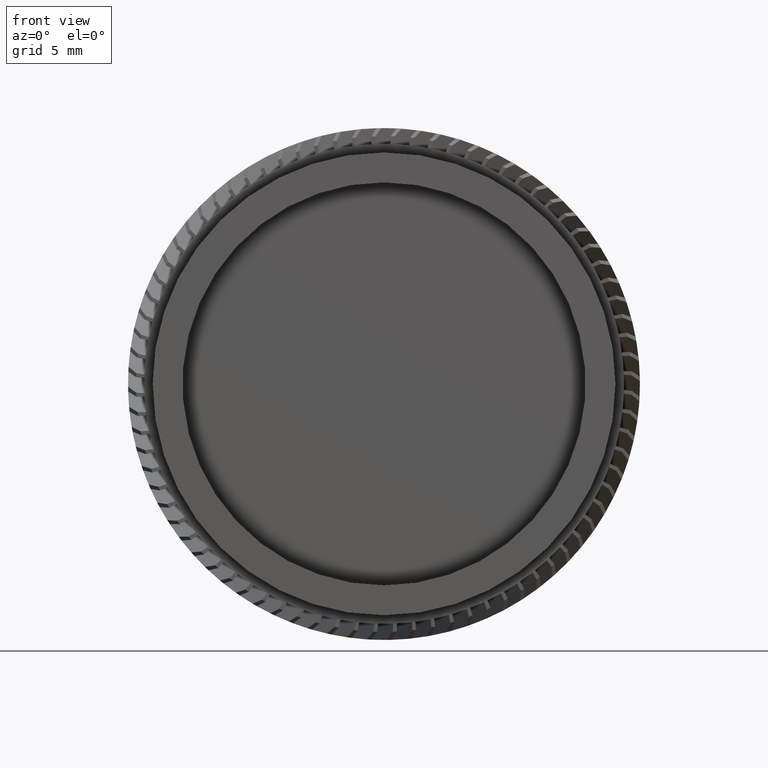
[diagram: clean part render]
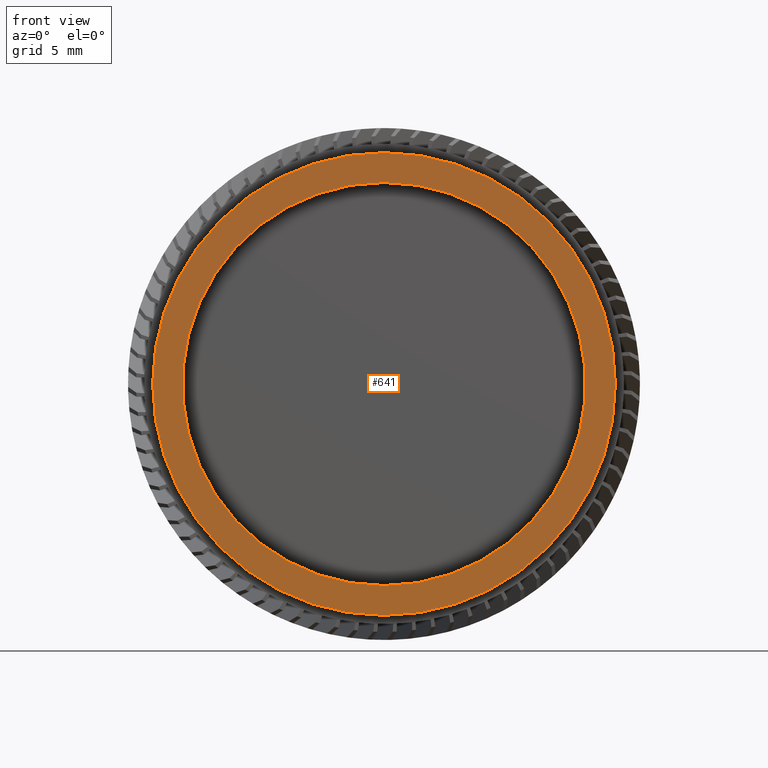
[diagram: same view with one face highlighted and labeled with its STEP entity id]
A machine part, front view. The second image highlights one B-rep face of the part: STEP entity #641.
In plain terms, the highlighted planar face has unit normal (-0, 1, 0).
Its self-contained STEP definition (entity closure, byte-faithful):
#106 = DIRECTION ( 'NONE',  ( 0.0000000000000000000, 0.0000000000000000000, 1.000000000000000000 ) ) ;
#641 = ADVANCED_FACE ( 'NONE', ( #4603, #6800 ), #3836, .F. ) ;
#917 = ORIENTED_EDGE ( 'NONE', *, *, #2044, .T. ) ;
#1429 = DIRECTION ( 'NONE',  ( -0.0000000000000000000, 1.000000000000000000, -0.0000000000000000000 ) ) ;
#1930 = CARTESIAN_POINT ( 'NONE',  ( 0.0000000000000000000, 15.37125740523061900, 0.0000000000000000000 ) ) ;
#2044 = EDGE_CURVE ( 'NONE', #12291, #3282, #14964, .T. ) ;
#2523 = ORIENTED_EDGE ( 'NONE', *, *, #16471, .T. ) ;
#2539 = CARTESIAN_POINT ( 'NONE',  ( 0.0000000000000000000, 15.37125740523061900, 14.35000000000000500 ) ) ;
#2550 = CIRCLE ( 'NONE', #14551, 14.35000000000000500 ) ;
#3282 = VERTEX_POINT ( 'NONE', #15849 ) ;
#3558 = VERTEX_POINT ( 'NONE', #10694 ) ;
#3836 = PLANE ( 'NONE',  #13934 ) ;
#4603 = FACE_OUTER_BOUND ( 'NONE', #9583, .T. ) ;
#5219 = ORIENTED_EDGE ( 'NONE', *, *, #6168, .F. ) ;
#6168 = EDGE_CURVE ( 'NONE', #9115, #3558, #11112, .T. ) ;
#6511 = DIRECTION ( 'NONE',  ( -0.0000000000000000000, 1.000000000000000000, -0.0000000000000000000 ) ) ;
#6800 = FACE_BOUND ( 'NONE', #13030, .T. ) ;
#7559 = CARTESIAN_POINT ( 'NONE',  ( 0.0000000000000000000, 15.37125740523061900, 0.0000000000000000000 ) ) ;
#7622 = DIRECTION ( 'NONE',  ( -0.0000000000000000000, 1.000000000000000000, -0.0000000000000000000 ) ) ;
#9115 = VERTEX_POINT ( 'NONE', #2539 ) ;
#9266 = EDGE_CURVE ( 'NONE', #3558, #9115, #2550, .T. ) ;
#9583 = EDGE_LOOP ( 'NONE', ( #5219, #12967 ) ) ;
#10694 = CARTESIAN_POINT ( 'NONE',  ( 1.757368156776452400E-015, 15.37125740523061900, -14.35000000000000500 ) ) ;
#11112 = CIRCLE ( 'NONE', #15885, 14.35000000000000500 ) ;
#11477 = AXIS2_PLACEMENT_3D ( 'NONE', #17252, #6511, #18695 ) ;
#11619 = CARTESIAN_POINT ( 'NONE',  ( 0.0000000000000000000, 15.37125740523061900, 12.50000000000000500 ) ) ;
#11682 = DIRECTION ( 'NONE',  ( 0.0000000000000000000, 0.0000000000000000000, 1.000000000000000000 ) ) ;
#12270 = DIRECTION ( 'NONE',  ( 0.0000000000000000000, 0.0000000000000000000, 1.000000000000000000 ) ) ;
#12291 = VERTEX_POINT ( 'NONE', #11619 ) ;
#12967 = ORIENTED_EDGE ( 'NONE', *, *, #9266, .F. ) ;
#13030 = EDGE_LOOP ( 'NONE', ( #917, #2523 ) ) ;
#13934 = AXIS2_PLACEMENT_3D ( 'NONE', #14650, #14909, #11682 ) ;
#13999 = CARTESIAN_POINT ( 'NONE',  ( 0.0000000000000000000, 15.37125740523061900, 0.0000000000000000000 ) ) ;
#14551 = AXIS2_PLACEMENT_3D ( 'NONE', #13999, #7622, #106 ) ;
#14650 = CARTESIAN_POINT ( 'NONE',  ( 12.50000000000000500, 15.37125740523061700, 0.0000000000000000000 ) ) ;
#14909 = DIRECTION ( 'NONE',  ( -0.0000000000000000000, 1.000000000000000000, 0.0000000000000000000 ) ) ;
#14964 = CIRCLE ( 'NONE', #16824, 12.50000000000000500 ) ;
#15849 = CARTESIAN_POINT ( 'NONE',  ( 1.530808498934192100E-015, 15.37125740523061900, -12.50000000000000500 ) ) ;
#15885 = AXIS2_PLACEMENT_3D ( 'NONE', #7559, #1429, #12270 ) ;
#16471 = EDGE_CURVE ( 'NONE', #3282, #12291, #19204, .T. ) ;
#16824 = AXIS2_PLACEMENT_3D ( 'NONE', #1930, #18930, #17206 ) ;
#17206 = DIRECTION ( 'NONE',  ( 0.0000000000000000000, 0.0000000000000000000, 1.000000000000000000 ) ) ;
#17252 = CARTESIAN_POINT ( 'NONE',  ( 0.0000000000000000000, 15.37125740523061900, 0.0000000000000000000 ) ) ;
#18695 = DIRECTION ( 'NONE',  ( 0.0000000000000000000, 0.0000000000000000000, 1.000000000000000000 ) ) ;
#18930 = DIRECTION ( 'NONE',  ( -0.0000000000000000000, 1.000000000000000000, -0.0000000000000000000 ) ) ;
#19204 = CIRCLE ( 'NONE', #11477, 12.50000000000000500 ) ;